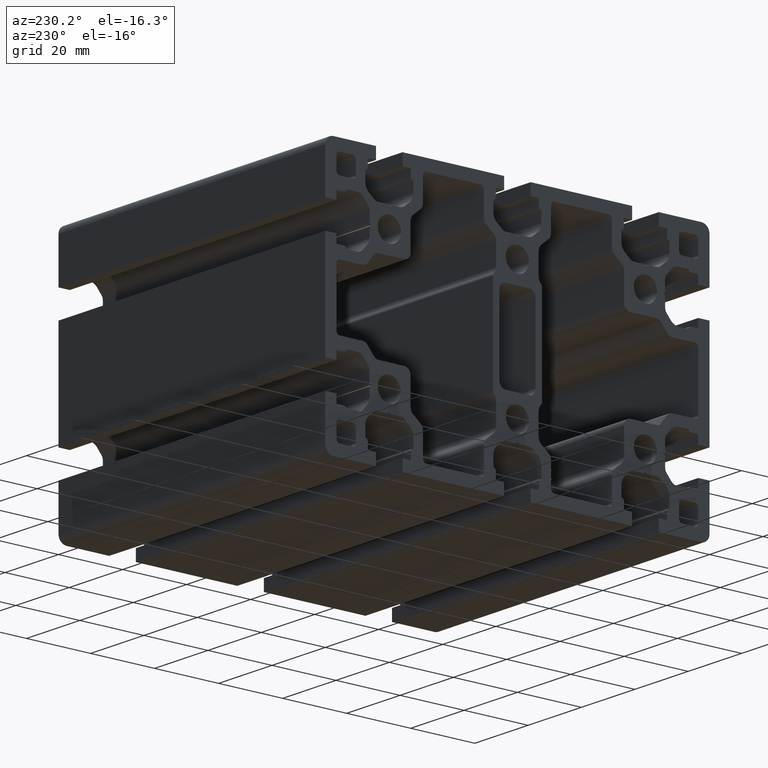
[diagram: clean part render]
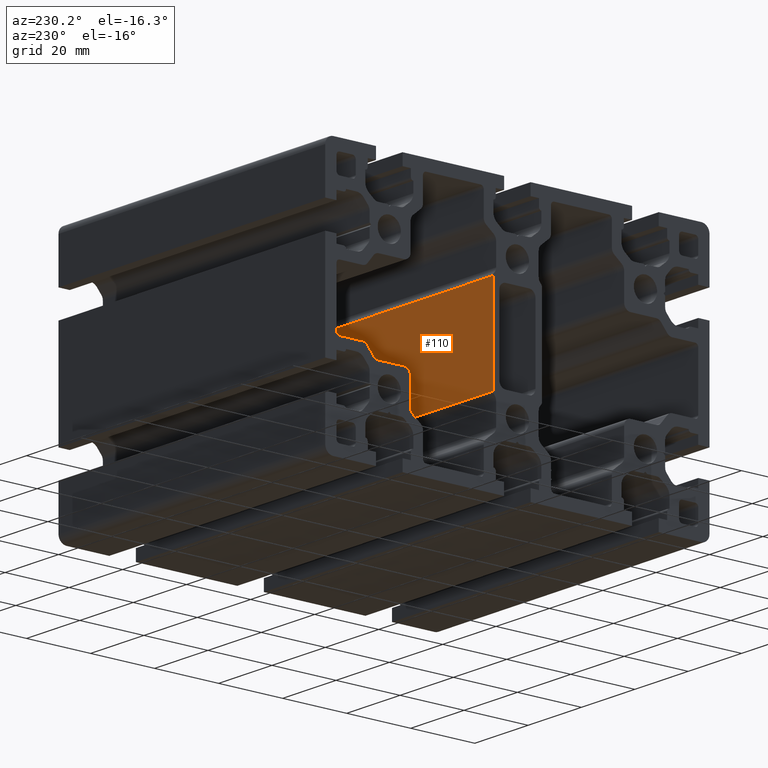
[diagram: same view with one face highlighted and labeled with its STEP entity id]
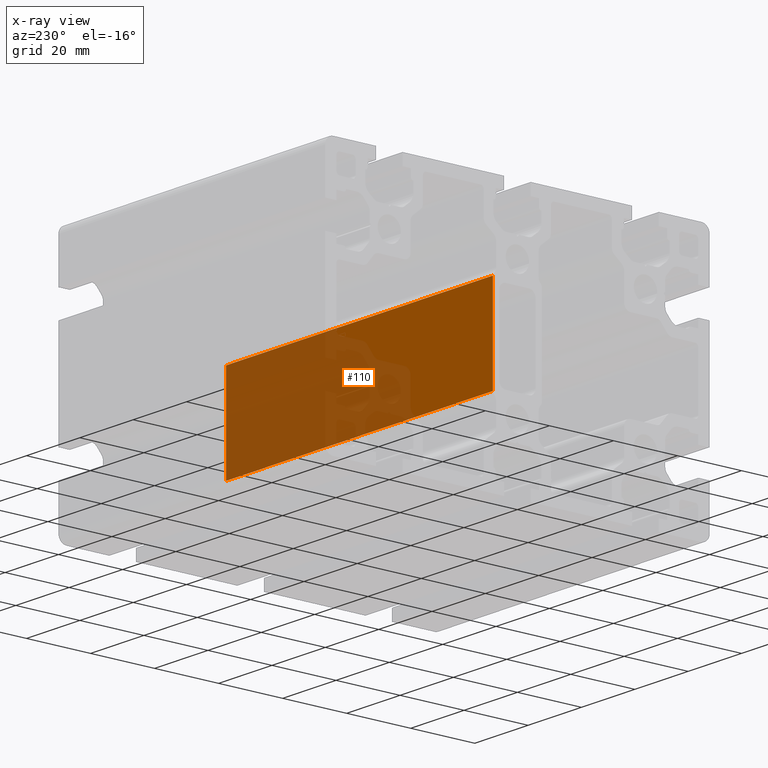
[diagram: x-ray of the same camera — body ghosted, the highlighted face saturated]
A machine part, auxiliary view. The second image highlights one B-rep face of the part: STEP entity #110.
The next image is the same camera in x-ray: the body ghosted, the highlighted face saturated — about 61% of this face is hidden behind the body in this view.
In plain terms, the highlighted planar face has unit normal (0, 1, 0).
Its self-contained STEP definition (entity closure, byte-faithful):
#110 = ADVANCED_FACE ( 'NONE', ( #6749 ), #5772, .T. ) ;
#426 = DIRECTION ( 'NONE',  ( -1.000000000000000000, -0.0000000000000000000, -0.0000000000000000000 ) ) ;
#469 = CARTESIAN_POINT ( 'NONE',  ( 100.0000000000000000, 7.650000000001620400, 14.43098485121157300 ) ) ;
#625 = ORIENTED_EDGE ( 'NONE', *, *, #11736, .T. ) ;
#766 = ORIENTED_EDGE ( 'NONE', *, *, #11808, .F. ) ;
#817 = ORIENTED_EDGE ( 'NONE', *, *, #11868, .T. ) ;
#868 = ORIENTED_EDGE ( 'NONE', *, *, #11866, .F. ) ;
#1333 = CARTESIAN_POINT ( 'NONE',  ( 0.0000000000000000000, 7.650000000001620400, -14.43098485120442800 ) ) ;
#1352 = DIRECTION ( 'NONE',  ( -0.0000000000000000000, -0.0000000000000000000, -1.000000000000000000 ) ) ;
#1358 = DIRECTION ( 'NONE',  ( -0.0000000000000000000, -0.0000000000000000000, -1.000000000000000000 ) ) ;
#1360 = CARTESIAN_POINT ( 'NONE',  ( 100.0000000000000000, 7.650000000001620400, -14.43098485120442800 ) ) ;
#1834 = VERTEX_POINT ( 'NONE', #4657 ) ;
#2348 = VERTEX_POINT ( 'NONE', #8464 ) ;
#2358 = VERTEX_POINT ( 'NONE', #7851 ) ;
#2368 = VERTEX_POINT ( 'NONE', #7662 ) ;
#2413 = EDGE_LOOP ( 'NONE', ( #868, #766, #817, #625 ) ) ;
#4657 = CARTESIAN_POINT ( 'NONE',  ( 0.0000000000000000000, 7.650000000001620400, 14.43098485121157300 ) ) ;
#5345 = AXIS2_PLACEMENT_3D ( 'NONE', #5485, #5414, #5409 ) ;
#5409 = DIRECTION ( 'NONE',  ( 0.0000000000000000000, -0.0000000000000000000, 1.000000000000000000 ) ) ;
#5414 = DIRECTION ( 'NONE',  ( 0.0000000000000000000, 1.000000000000000000, 0.0000000000000000000 ) ) ;
#5485 = CARTESIAN_POINT ( 'NONE',  ( 100.0000000000000000, 7.650000000001620400, -14.43098485120442800 ) ) ;
#5772 = PLANE ( 'NONE',  #5345 ) ;
#6749 = FACE_OUTER_BOUND ( 'NONE', #2413, .T. ) ;
#7662 = CARTESIAN_POINT ( 'NONE',  ( 100.0000000000000000, 7.650000000001620400, -14.43098485120442800 ) ) ;
#7851 = CARTESIAN_POINT ( 'NONE',  ( 0.0000000000000000000, 7.650000000001620400, -14.43098485120442800 ) ) ;
#8464 = CARTESIAN_POINT ( 'NONE',  ( 100.0000000000000000, 7.650000000001620400, 14.43098485121157300 ) ) ;
#10656 = VECTOR ( 'NONE', #1352, 1000.000000000000000 ) ;
#10670 = LINE ( 'NONE', #1333, #10783 ) ;
#10672 = LINE ( 'NONE', #1360, #10656 ) ;
#10686 = LINE ( 'NONE', #469, #10771 ) ;
#10699 = LINE ( 'NONE', #12189, #10776 ) ;
#10771 = VECTOR ( 'NONE', #426, 1000.000000000000000 ) ;
#10776 = VECTOR ( 'NONE', #12256, 1000.000000000000000 ) ;
#10783 = VECTOR ( 'NONE', #1358, 1000.000000000000000 ) ;
#11736 = EDGE_CURVE ( 'NONE', #2368, #2358, #10699, .T. ) ;
#11808 = EDGE_CURVE ( 'NONE', #2348, #1834, #10686, .T. ) ;
#11866 = EDGE_CURVE ( 'NONE', #1834, #2358, #10670, .T. ) ;
#11868 = EDGE_CURVE ( 'NONE', #2348, #2368, #10672, .T. ) ;
#12189 = CARTESIAN_POINT ( 'NONE',  ( 100.0000000000000000, 7.650000000001620400, -14.43098485120442800 ) ) ;
#12256 = DIRECTION ( 'NONE',  ( -1.000000000000000000, -0.0000000000000000000, -0.0000000000000000000 ) ) ;